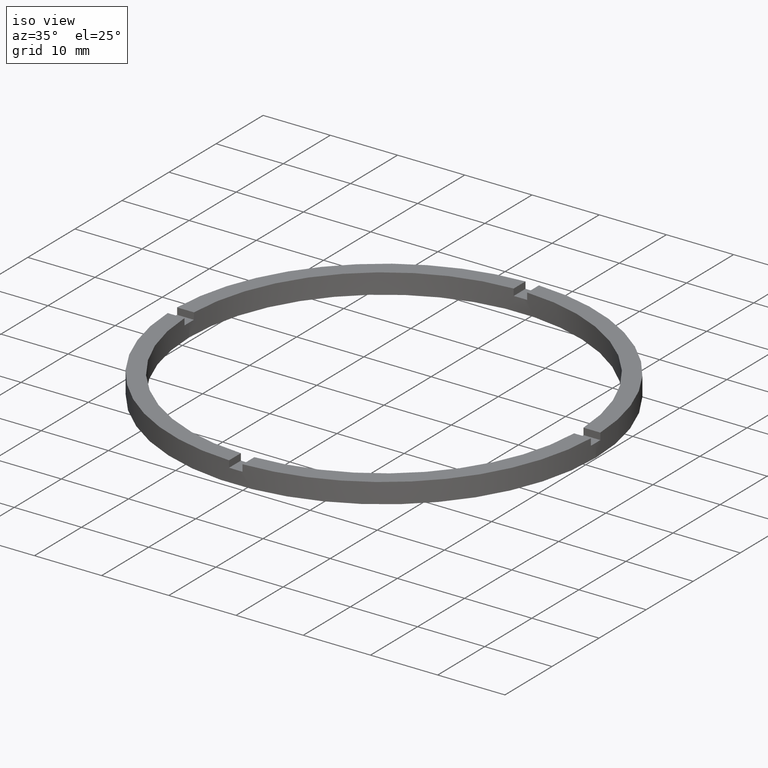
[diagram: clean part render]
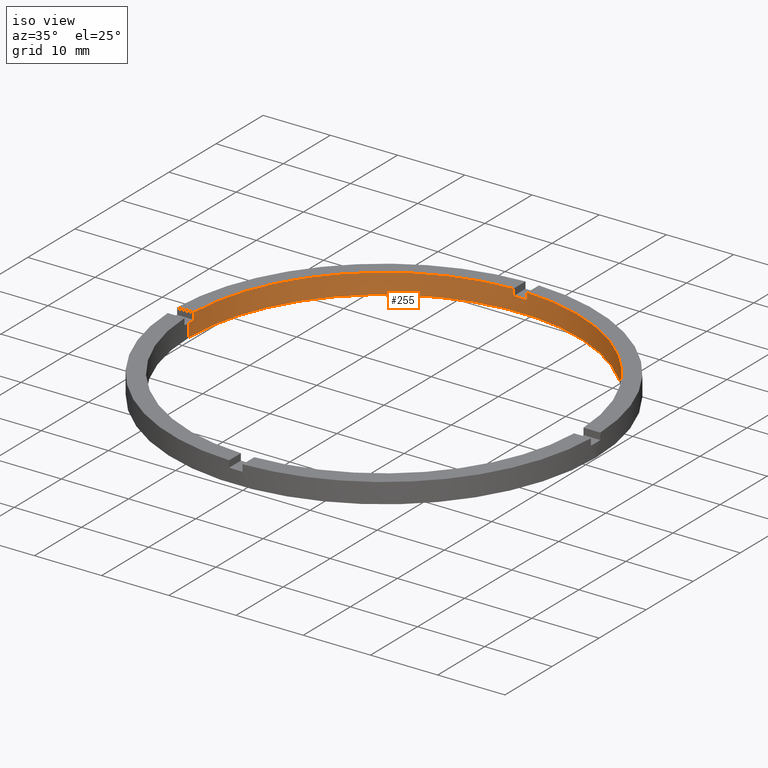
[diagram: same view with one face highlighted and labeled with its STEP entity id]
A machine part, iso view. The second image highlights one B-rep face of the part: STEP entity #255.
In plain terms, the highlighted cylindrical surface (partial cylindrical patch) has radius 29 mm, axis along (-0, -0, -1).
Its self-contained STEP definition (entity closure, byte-faithful):
#1 = VERTEX_POINT ( 'NONE', #174 ) ;
#7 = CARTESIAN_POINT ( 'NONE',  ( 29.00000000000000000, 3.551475717527324030E-15, 3.000000000000000000 ) ) ;
#12 = EDGE_CURVE ( 'NONE', #1, #682, #192, .T. ) ;
#14 = DIRECTION ( 'NONE',  ( 1.000000000000000000, 0.000000000000000000, 0.000000000000000000 ) ) ;
#16 = EDGE_CURVE ( 'NONE', #737, #451, #709, .T. ) ;
#20 = AXIS2_PLACEMENT_3D ( 'NONE', #381, #619, #717 ) ;
#24 = EDGE_CURVE ( 'NONE', #564, #451, #730, .T. ) ;
#31 = VERTEX_POINT ( 'NONE', #387 ) ;
#43 = LINE ( 'NONE', #590, #299 ) ;
#45 = ORIENTED_EDGE ( 'NONE', *, *, #593, .T. ) ;
#52 = DIRECTION ( 'NONE',  ( 0.000000000000000000, 0.000000000000000000, 1.000000000000000000 ) ) ;
#62 = CARTESIAN_POINT ( 'NONE',  ( -28.98275349237887966, 0.9999999999999746869, 3.000000000000000000 ) ) ;
#63 = CARTESIAN_POINT ( 'NONE',  ( -29.00000000000000000, 0.000000000000000000, 3.000000000000000000 ) ) ;
#75 = EDGE_CURVE ( 'NONE', #564, #653, #718, .T. ) ;
#92 = AXIS2_PLACEMENT_3D ( 'NONE', #738, #641, #14 ) ;
#96 = DIRECTION ( 'NONE',  ( 1.000000000000000000, 0.000000000000000000, 0.000000000000000000 ) ) ;
#98 = EDGE_CURVE ( 'NONE', #31, #682, #601, .T. ) ;
#103 = CARTESIAN_POINT ( 'NONE',  ( 0.000000000000000000, 0.000000000000000000, 2.000000000000000000 ) ) ;
#113 = DIRECTION ( 'NONE',  ( -0.000000000000000000, -0.000000000000000000, -1.000000000000000000 ) ) ;
#121 = CARTESIAN_POINT ( 'NONE',  ( 0.9999999999999754641, 28.98275349237887966, 3.000000000000000000 ) ) ;
#130 = EDGE_CURVE ( 'NONE', #440, #1, #480, .T. ) ;
#137 = DIRECTION ( 'NONE',  ( 1.000000000000000000, 0.000000000000000000, 0.000000000000000000 ) ) ;
#139 = CIRCLE ( 'NONE', #20, 29.00000000000000000 ) ;
#144 = EDGE_CURVE ( 'NONE', #749, #653, #744, .T. ) ;
#162 = CARTESIAN_POINT ( 'NONE',  ( 0.000000000000000000, 0.000000000000000000, 2.000000000000000000 ) ) ;
#164 = CARTESIAN_POINT ( 'NONE',  ( -1.000000000000024425, 28.98275349237887610, 3.000000000000000000 ) ) ;
#174 = CARTESIAN_POINT ( 'NONE',  ( 29.00000000000000000, 3.551475717527324030E-15, 0.000000000000000000 ) ) ;
#183 = VERTEX_POINT ( 'NONE', #409 ) ;
#189 = DIRECTION ( 'NONE',  ( 0.000000000000000000, -0.000000000000000000, 1.000000000000000000 ) ) ;
#192 = CIRCLE ( 'NONE', #761, 29.00000000000000000 ) ;
#193 = DIRECTION ( 'NONE',  ( 0.000000000000000000, 0.000000000000000000, 1.000000000000000000 ) ) ;
#195 = VECTOR ( 'NONE', #246, 1000.000000000000000 ) ;
#206 = VECTOR ( 'NONE', #479, 1000.000000000000000 ) ;
#215 = CARTESIAN_POINT ( 'NONE',  ( -28.98275349237887966, 0.9999999999999746869, 3.000000000000000000 ) ) ;
#222 = ORIENTED_EDGE ( 'NONE', *, *, #130, .F. ) ;
#225 = EDGE_CURVE ( 'NONE', #737, #298, #43, .T. ) ;
#230 = AXIS2_PLACEMENT_3D ( 'NONE', #162, #766, #137 ) ;
#241 = ORIENTED_EDGE ( 'NONE', *, *, #144, .F. ) ;
#246 = DIRECTION ( 'NONE',  ( -0.000000000000000000, -0.000000000000000000, -1.000000000000000000 ) ) ;
#255 = ADVANCED_FACE ( 'NONE', ( #666 ), #453, .F. ) ;
#266 = CARTESIAN_POINT ( 'NONE',  ( 0.000000000000000000, 0.000000000000000000, 3.000000000000000000 ) ) ;
#291 = ORIENTED_EDGE ( 'NONE', *, *, #75, .T. ) ;
#298 = VERTEX_POINT ( 'NONE', #121 ) ;
#299 = VECTOR ( 'NONE', #561, 1000.000000000000000 ) ;
#303 = ORIENTED_EDGE ( 'NONE', *, *, #98, .T. ) ;
#320 = AXIS2_PLACEMENT_3D ( 'NONE', #103, #189, #96 ) ;
#330 = CARTESIAN_POINT ( 'NONE',  ( 29.00000000000000000, 3.551475717527324030E-15, 2.000000000000000000 ) ) ;
#351 = AXIS2_PLACEMENT_3D ( 'NONE', #266, #767, #567 ) ;
#381 = CARTESIAN_POINT ( 'NONE',  ( 0.000000000000000000, 0.000000000000000000, 2.000000000000000000 ) ) ;
#387 = CARTESIAN_POINT ( 'NONE',  ( -29.00000000000000000, 0.000000000000000000, 2.000000000000000000 ) ) ;
#395 = CARTESIAN_POINT ( 'NONE',  ( 0.000000000000000000, 0.000000000000000000, 0.000000000000000000 ) ) ;
#399 = EDGE_CURVE ( 'NONE', #440, #183, #428, .T. ) ;
#405 = DIRECTION ( 'NONE',  ( 1.000000000000000000, 0.000000000000000000, 0.000000000000000000 ) ) ;
#409 = CARTESIAN_POINT ( 'NONE',  ( 28.98275349237888321, 0.9999999999998414602, 2.000000000000000000 ) ) ;
#417 = DIRECTION ( 'NONE',  ( -1.000000000000000000, 0.000000000000000000, 0.000000000000000000 ) ) ;
#420 = EDGE_LOOP ( 'NONE', ( #222, #537, #470, #754, #770, #665, #444, #291, #241, #45, #303, #461 ) ) ;
#428 = CIRCLE ( 'NONE', #230, 29.00000000000000000 ) ;
#440 = VERTEX_POINT ( 'NONE', #330 ) ;
#442 = DIRECTION ( 'NONE',  ( -0.000000000000000000, -0.000000000000000000, -1.000000000000000000 ) ) ;
#444 = ORIENTED_EDGE ( 'NONE', *, *, #24, .F. ) ;
#451 = VERTEX_POINT ( 'NONE', #583 ) ;
#453 = CYLINDRICAL_SURFACE ( 'NONE', #569, 29.00000000000000000 ) ;
#456 = CARTESIAN_POINT ( 'NONE',  ( 28.98275349237888321, 0.9999999999998414602, 3.000000000000000000 ) ) ;
#461 = ORIENTED_EDGE ( 'NONE', *, *, #12, .F. ) ;
#462 = LINE ( 'NONE', #616, #206 ) ;
#470 = ORIENTED_EDGE ( 'NONE', *, *, #732, .F. ) ;
#479 = DIRECTION ( 'NONE',  ( -0.000000000000000000, -0.000000000000000000, -1.000000000000000000 ) ) ;
#480 = LINE ( 'NONE', #7, #742 ) ;
#483 = VECTOR ( 'NONE', #193, 1000.000000000000000 ) ;
#537 = ORIENTED_EDGE ( 'NONE', *, *, #399, .T. ) ;
#561 = DIRECTION ( 'NONE',  ( 0.000000000000000000, 0.000000000000000000, 1.000000000000000000 ) ) ;
#564 = VERTEX_POINT ( 'NONE', #689 ) ;
#567 = DIRECTION ( 'NONE',  ( 1.000000000000000000, 0.000000000000000000, 0.000000000000000000 ) ) ;
#569 = AXIS2_PLACEMENT_3D ( 'NONE', #643, #442, #417 ) ;
#583 = CARTESIAN_POINT ( 'NONE',  ( -1.000000000000024425, 28.98275349237887610, 2.000000000000000000 ) ) ;
#590 = CARTESIAN_POINT ( 'NONE',  ( 0.9999999999999754641, 28.98275349237887966, 3.000000000000000000 ) ) ;
#592 = DIRECTION ( 'NONE',  ( -0.000000000000000000, -0.000000000000000000, -1.000000000000000000 ) ) ;
#593 = EDGE_CURVE ( 'NONE', #749, #31, #139, .T. ) ;
#601 = LINE ( 'NONE', #63, #604 ) ;
#602 = CARTESIAN_POINT ( 'NONE',  ( -29.00000000000000000, 0.000000000000000000, 0.000000000000000000 ) ) ;
#604 = VECTOR ( 'NONE', #113, 1000.000000000000000 ) ;
#608 = VERTEX_POINT ( 'NONE', #456 ) ;
#616 = CARTESIAN_POINT ( 'NONE',  ( 28.98275349237888321, 0.9999999999998414602, 3.000000000000000000 ) ) ;
#619 = DIRECTION ( 'NONE',  ( 0.000000000000000000, 0.000000000000000000, 1.000000000000000000 ) ) ;
#621 = EDGE_CURVE ( 'NONE', #608, #298, #702, .T. ) ;
#641 = DIRECTION ( 'NONE',  ( 0.000000000000000000, 0.000000000000000000, 1.000000000000000000 ) ) ;
#643 = CARTESIAN_POINT ( 'NONE',  ( 0.000000000000000000, 0.000000000000000000, 3.000000000000000000 ) ) ;
#653 = VERTEX_POINT ( 'NONE', #215 ) ;
#665 = ORIENTED_EDGE ( 'NONE', *, *, #16, .T. ) ;
#666 = FACE_OUTER_BOUND ( 'NONE', #420, .T. ) ;
#682 = VERTEX_POINT ( 'NONE', #602 ) ;
#689 = CARTESIAN_POINT ( 'NONE',  ( -1.000000000000024425, 28.98275349237887610, 3.000000000000000000 ) ) ;
#702 = CIRCLE ( 'NONE', #351, 29.00000000000000000 ) ;
#709 = CIRCLE ( 'NONE', #320, 29.00000000000000000 ) ;
#717 = DIRECTION ( 'NONE',  ( 1.000000000000000000, 0.000000000000000000, 0.000000000000000000 ) ) ;
#718 = CIRCLE ( 'NONE', #92, 29.00000000000000000 ) ;
#729 = CARTESIAN_POINT ( 'NONE',  ( -28.98275349237887966, 0.9999999999999746869, 2.000000000000000000 ) ) ;
#730 = LINE ( 'NONE', #164, #195 ) ;
#732 = EDGE_CURVE ( 'NONE', #608, #183, #462, .T. ) ;
#737 = VERTEX_POINT ( 'NONE', #778 ) ;
#738 = CARTESIAN_POINT ( 'NONE',  ( 0.000000000000000000, 0.000000000000000000, 3.000000000000000000 ) ) ;
#742 = VECTOR ( 'NONE', #592, 1000.000000000000000 ) ;
#744 = LINE ( 'NONE', #62, #483 ) ;
#749 = VERTEX_POINT ( 'NONE', #729 ) ;
#754 = ORIENTED_EDGE ( 'NONE', *, *, #621, .T. ) ;
#761 = AXIS2_PLACEMENT_3D ( 'NONE', #395, #52, #405 ) ;
#766 = DIRECTION ( 'NONE',  ( 0.000000000000000000, 0.000000000000000000, 1.000000000000000000 ) ) ;
#767 = DIRECTION ( 'NONE',  ( 0.000000000000000000, 0.000000000000000000, 1.000000000000000000 ) ) ;
#770 = ORIENTED_EDGE ( 'NONE', *, *, #225, .F. ) ;
#778 = CARTESIAN_POINT ( 'NONE',  ( 0.9999999999999754641, 28.98275349237887966, 2.000000000000000000 ) ) ;